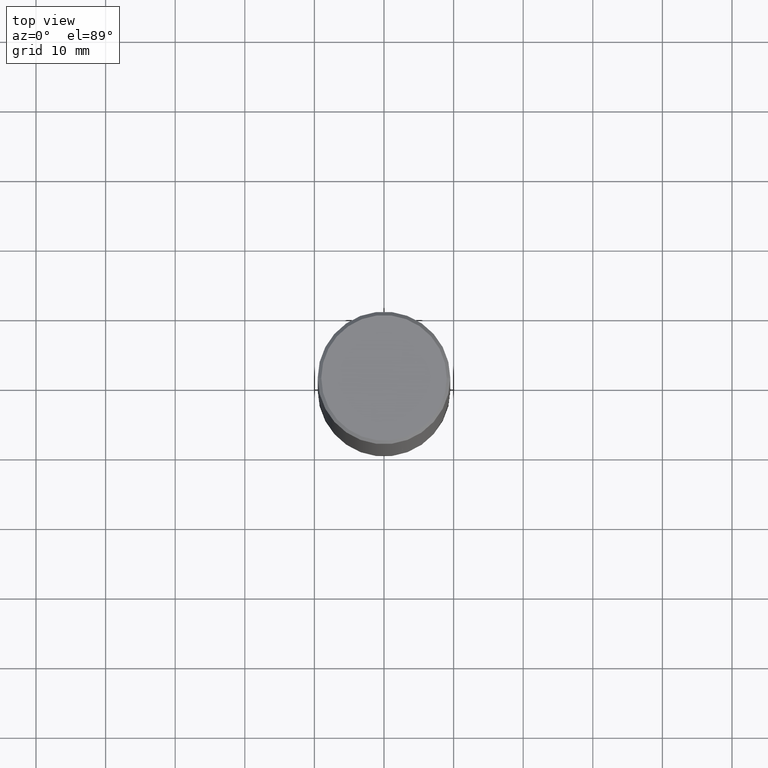
[diagram: clean part render]
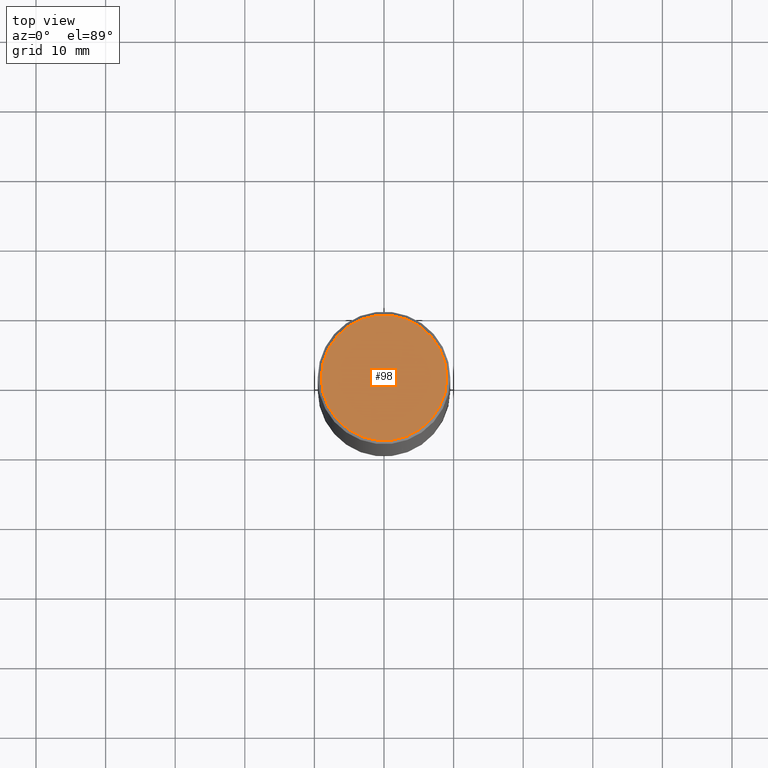
[diagram: same view with one face highlighted and labeled with its STEP entity id]
A machine part, top view. The second image highlights one B-rep face of the part: STEP entity #98.
In plain terms, the highlighted planar face has unit normal (0, -0, -1).
Its self-contained STEP definition (entity closure, byte-faithful):
#7 = CARTESIAN_POINT ( 'NONE',  ( -3.131554243005659264E-46, 4.471029511141341874E-32, 1.280553747030123384E-17 ) ) ;
#25 = FACE_OUTER_BOUND ( 'NONE', #158, .T. ) ;
#28 = CARTESIAN_POINT ( 'NONE',  ( 2.478951750578621448E-15, 0.3549999999999995381, -1.233073106554164423E-15 ) ) ;
#60 = CIRCLE ( 'NONE', #342, 0.3549999999999995381 ) ;
#81 = ORIENTED_EDGE ( 'NONE', *, *, #190, .T. ) ;
#91 = VERTEX_POINT ( 'NONE', #221 ) ;
#98 = ADVANCED_FACE ( 'NONE', ( #25 ), #251, .F. ) ;
#109 = DIRECTION ( 'NONE',  ( 2.438088387897960049E-29, -3.491481338843145188E-15, -1.000000000000000000 ) ) ;
#136 = DIRECTION ( 'NONE',  ( -1.000000000000000000, 6.982962677686265922E-15, -4.876176775795935793E-29 ) ) ;
#153 = DIRECTION ( 'NONE',  ( -2.445468806185136597E-29, 3.491481338843145583E-15, 1.000000000000000000 ) ) ;
#158 = EDGE_LOOP ( 'NONE', ( #316, #81 ) ) ;
#179 = CARTESIAN_POINT ( 'NONE',  ( -3.131554243005659264E-46, 4.471029511141341874E-32, 1.280553747030123384E-17 ) ) ;
#187 = VERTEX_POINT ( 'NONE', #366 ) ;
#190 = EDGE_CURVE ( 'NONE', #91, #187, #60, .T. ) ;
#202 = DIRECTION ( 'NONE',  ( -2.445468806185136597E-29, 3.491481338843145583E-15, 1.000000000000000000 ) ) ;
#221 = CARTESIAN_POINT ( 'NONE',  ( 0.3549999999999995381, -2.538996582575037893E-15, 1.280553747031877983E-17 ) ) ;
#229 = AXIS2_PLACEMENT_3D ( 'NONE', #7, #153, #273 ) ;
#251 = PLANE ( 'NONE',  #315 ) ;
#254 = CIRCLE ( 'NONE', #229, 0.3549999999999995381 ) ;
#273 = DIRECTION ( 'NONE',  ( 1.000000000000000000, -6.982962677686266711E-15, 4.876231632511994349E-29 ) ) ;
#310 = DIRECTION ( 'NONE',  ( 1.000000000000000000, -6.982962677686266711E-15, 4.876231632511994349E-29 ) ) ;
#315 = AXIS2_PLACEMENT_3D ( 'NONE', #28, #109, #136 ) ;
#316 = ORIENTED_EDGE ( 'NONE', *, *, #344, .T. ) ;
#342 = AXIS2_PLACEMENT_3D ( 'NONE', #179, #202, #310 ) ;
#344 = EDGE_CURVE ( 'NONE', #187, #91, #254, .T. ) ;
#366 = CARTESIAN_POINT ( 'NONE',  ( -0.3549999999999995381, 2.513866563967052703E-15, 1.280553747028377567E-17 ) ) ;